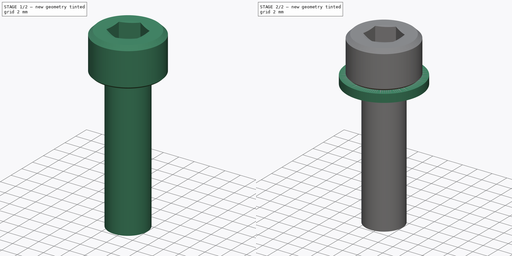
[diagram: build sequence overview — one tinted view per stage of 2, left to right]
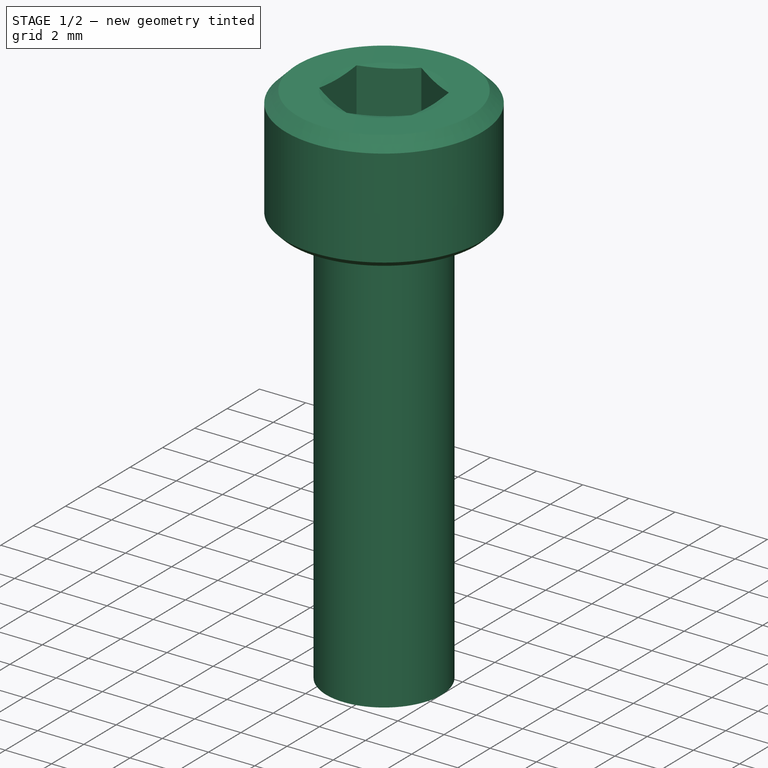
[diagram: stage 1 of 2 — iso view after this stage's code; geometry added in this stage tinted green]
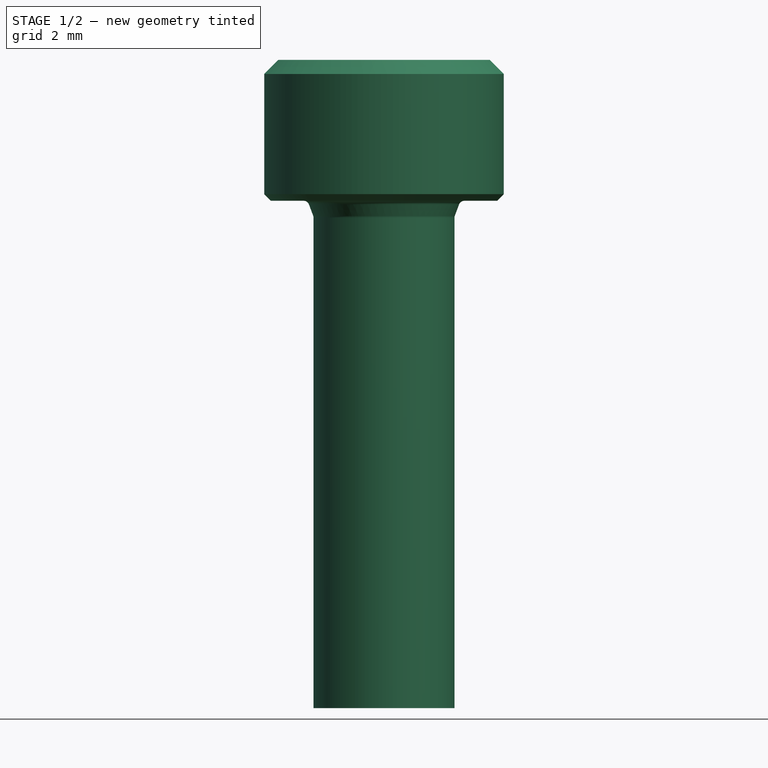
[diagram: stage 1 of 2 — front view after this stage's code; geometry added in this stage tinted green]
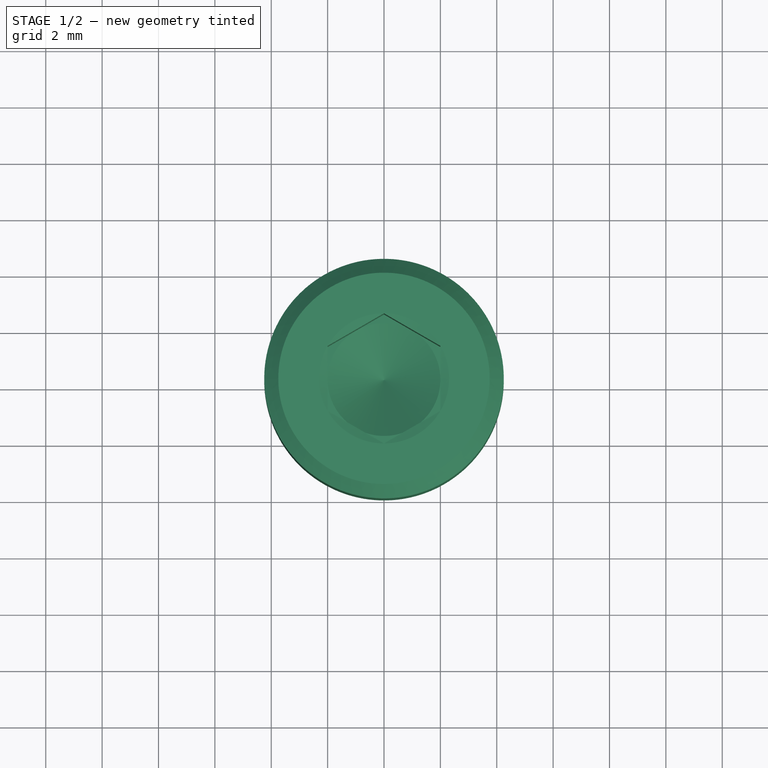
[diagram: stage 1 of 2 — top view after this stage's code; geometry added in this stage tinted green]
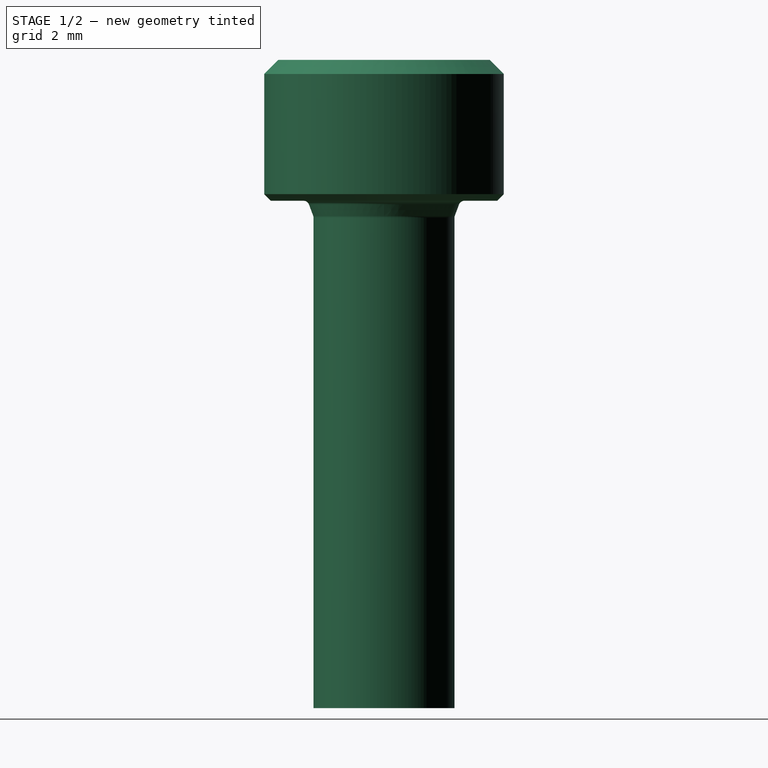
[diagram: stage 1 of 2 — right view after this stage's code; geometry added in this stage tinted green]
FCSTD DOCUMENT  (FreeCAD 0.19R24267 +99 (Git))
Label: Assembly M5x25MM Cap head sawn to 18mm washer
License: All rights reserved
LicenseURL: http://en.wikipedia.org/wiki/All_rights_reserved
objects: App::FeaturePython×4, Part::Feature×1, Sketcher::SketchObject×1, PartDesign::Pad×1, PartDesign::Body×1, Part::Cut×1, Part::FeaturePython×1
note: 7 computed .brp shape members not serialized (recipe doc carries the construction recipe); baked Part::Feature solids carry a one-line shape summary decoded from their .brp

FEATURE [Part::Feature] TR_Fastenings_Ltd_M5X25MM_Cap_Head_Hexagon_Socket_Drive_Screw_DIN_912_ISO_4762
  shape: bbox 8.501 x 8.501 x 30 mm, 40 faces (baked)
FEATURE [Sketcher::SketchObject] Sketch
  AttachmentOffset = pos=(0,0,-23) rot=(0,0,1;0rad)
  FullyConstrained = true
  MapMode = 5
  Placement = pos=(0,0,-23) rot=(0,0,1;0rad)
  Support = -> [XY_Plane]
  sketch-geometry (1):
    g0: Circle CenterX=0 CenterY=0 CenterZ=0 NormalX=0 NormalY=0 NormalZ=1 AngleXU=0 Radius=5
  constraints (2):
    c: Coincident(g0,g-1)
    c: Diameter(g0) = 10
FEATURE [PartDesign::Pad] Pad
  Direction = (1,1,1)
  Length = 10
  Length2 = 100
  Profile = -> Sketch
  Reversed = true
  Type = 0
FEATURE [PartDesign::Body] Body
  Group = -> [Sketch,Pad]
  Origin = -> Origin
  Tip = -> Pad
FEATURE [Part::Cut] Cut
  Base = -> TR_Fastenings_Ltd_M5X25MM_Cap_Head_Hexagon_Socket_Drive_Screw_DIN_912_ISO_4762
  Placement = pos=(0,-2.501e-13,6.1) rot=(0,0,1;0rad)
  Tool = -> Body
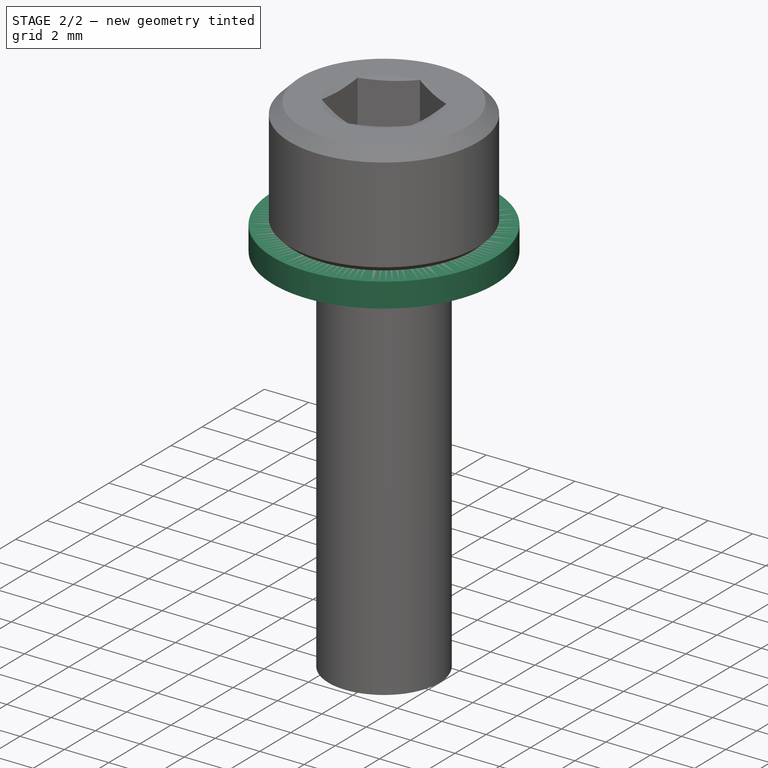
[diagram: stage 2 of 2 — iso view after this stage's code; geometry added in this stage tinted green]
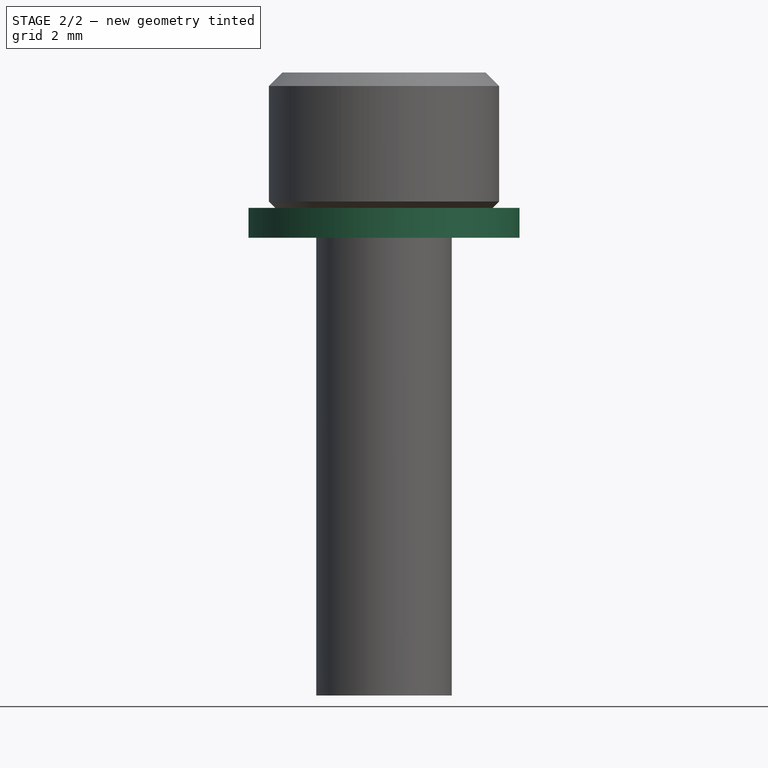
[diagram: stage 2 of 2 — front view after this stage's code; geometry added in this stage tinted green]
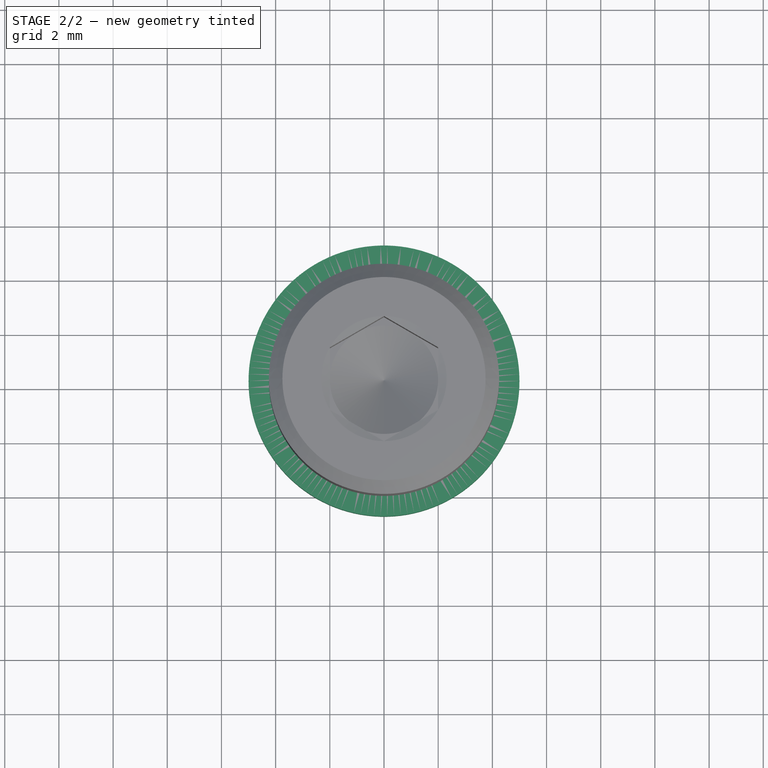
[diagram: stage 2 of 2 — top view after this stage's code; geometry added in this stage tinted green]
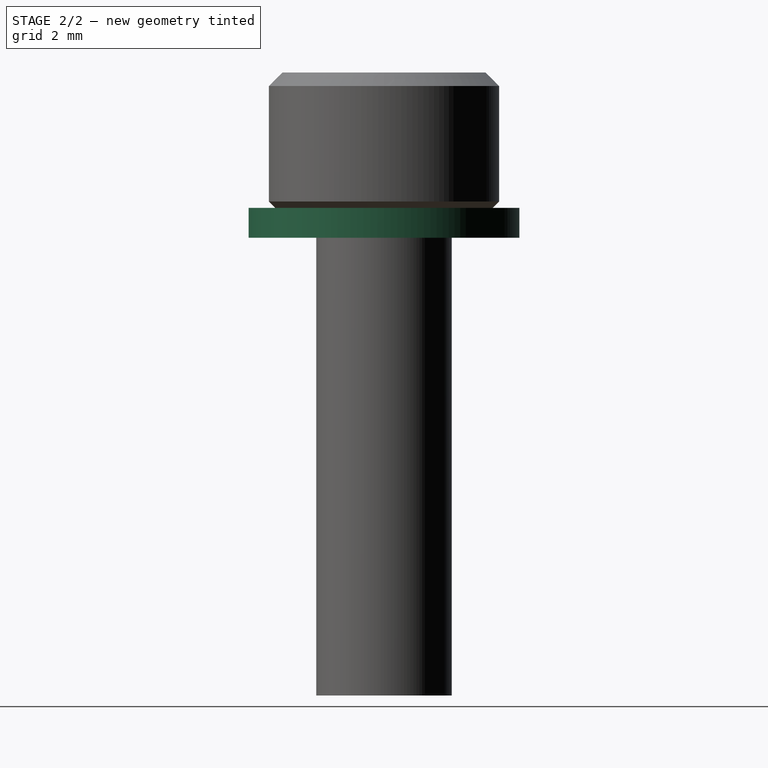
[diagram: stage 2 of 2 — right view after this stage's code; geometry added in this stage tinted green]
FEATURE [Part::FeaturePython] b_TR_Fastenings_Ltd_M5_Flat_Washer_to_DIN125A1_001_  label="TR Fastenings Ltd-M5 Flat Washer to DIN125A1_001"  # a2plus imported part (geometry in sourceFile) (typed FeaturePython)
  a2p_Version = 0.4.60g
  fixedPosition = true
  objectType = a2pPart
  sourceFile = .\..\_TR Fastners files redownloaded\TR Fastenings Ltd-M5 Flat Washer to DIN125A.step
  subassemblyImport = false
  timeLastImport = 1.67262e+09
  updateColors = true
FEATURE [App::FeaturePython] axisCoincident_001  label="axisCoincident_001__Cut"  # a2plus constraint (typed FeaturePython)
  Object1 = b_TR_Fastenings_Ltd_M5_Flat_Washer_to_DIN125A1_001_
  Object2 = Cut
  ParentTreeObject = -> b_TR_Fastenings_Ltd_M5_Flat_Washer_to_DIN125A1_001_
  SubElement1 = Face1
  SubElement2 = Face37
  Suppressed = false
  Type = axial
  directionConstraint = 1
  lockRotation = false
FEATURE [App::FeaturePython] axisCoincident_001_mirror  label="axisCoincident_001__TR Fastenings Ltd-M5 Flat Washer to DIN125A1_001"  # a2plus constraint (typed FeaturePython)
  Object1 = b_TR_Fastenings_Ltd_M5_Flat_Washer_to_DIN125A1_001_
  Object2 = Cut
  ParentTreeObject = -> Cut
  SubElement1 = Face1
  SubElement2 = Face37
  Suppressed = false
  Type = axial
  directionConstraint = 1
  lockRotation = false
FEATURE [App::FeaturePython] planeCoincident_001  label="planeCoincident_001__Cut"  # a2plus constraint (typed FeaturePython)
  Object1 = b_TR_Fastenings_Ltd_M5_Flat_Washer_to_DIN125A1_001_
  Object2 = Cut
  ParentTreeObject = -> b_TR_Fastenings_Ltd_M5_Flat_Washer_to_DIN125A1_001_
  SubElement1 = Face3
  SubElement2 = Face29
  Suppressed = false
  Type = plane
  directionConstraint = 0
  offset = 0
FEATURE [App::FeaturePython] planeCoincident_001_mirror  label="planeCoincident_001__TR Fastenings Ltd-M5 Flat Washer to DIN125A1_001"  # a2plus constraint (typed FeaturePython)
  Object1 = b_TR_Fastenings_Ltd_M5_Flat_Washer_to_DIN125A1_001_
  Object2 = Cut
  ParentTreeObject = -> Cut
  SubElement1 = Face3
  SubElement2 = Face29
  Suppressed = false
  Type = plane
  directionConstraint = 0
  offset = 0
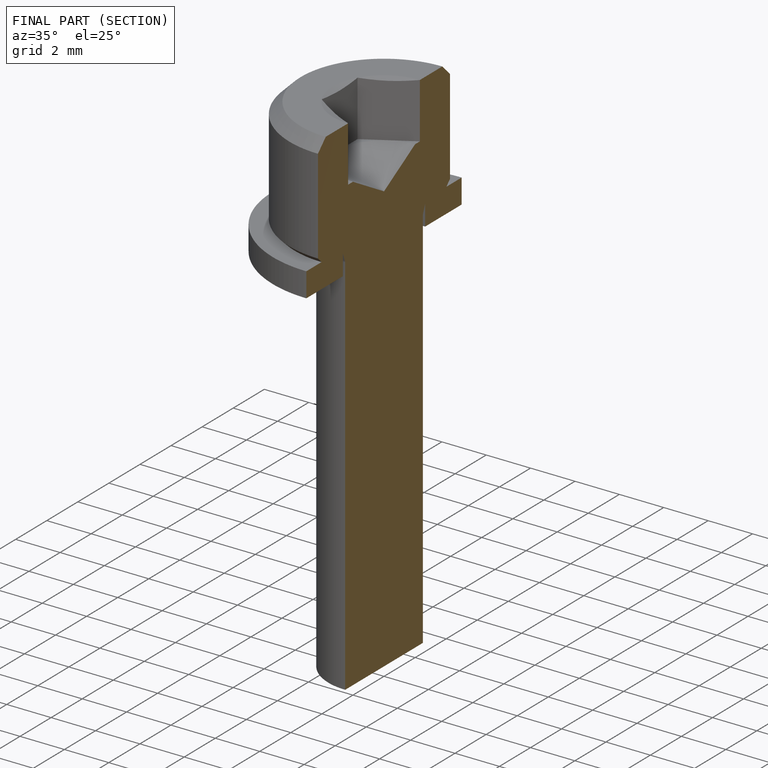
[diagram: finished part — half-section view (interior)]
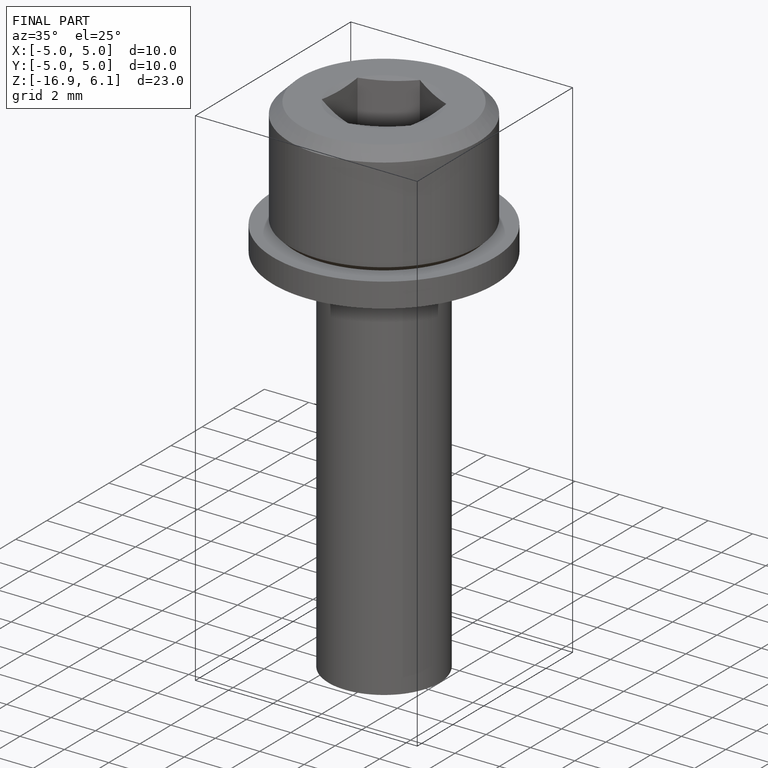
[diagram: finished part — iso view with bounding-box wireframe]
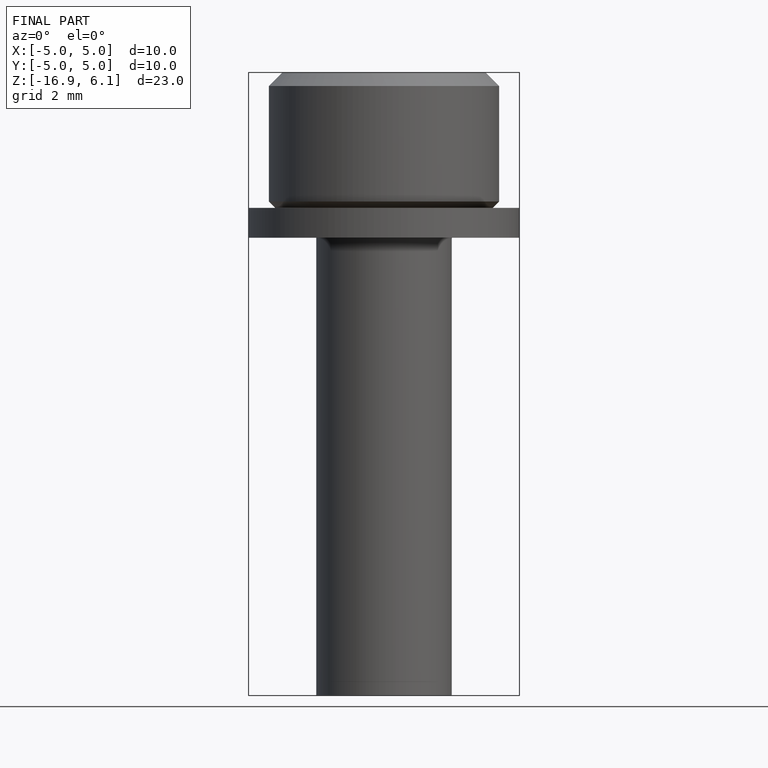
[diagram: finished part — front view with bounding-box wireframe]
